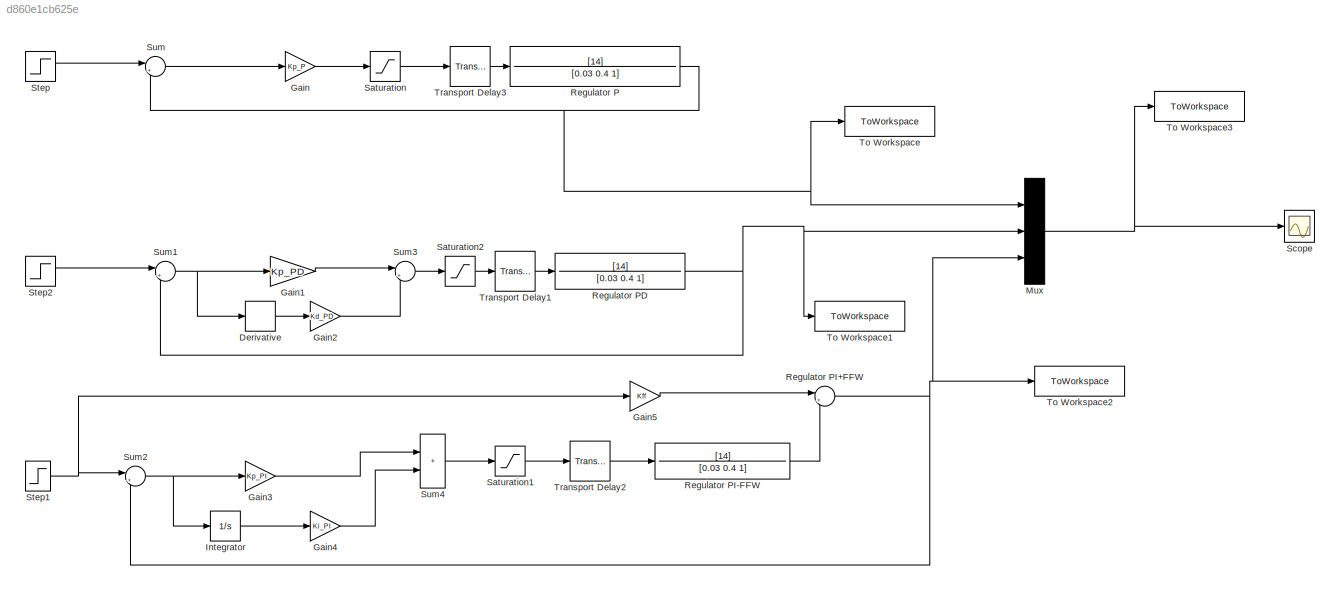
MODEL slx_d860e1cb625e
KIND model
CONFIG AbsTol = auto
CONFIG EnableMultiTasking = off
CONFIG FixedStep = auto
CONFIG MaxStep = 0.001
CONFIG MinStep = auto
CONFIG RelTol = 1e-4
CONFIG SampleTimeConstraint = Unconstrained
CONFIG SolverName = ode45
CONFIG StartTime = 0.0
CONFIG StopTime = 5
BLOCK [Derivative] Derivative
BLOCK [Gain] Gain
  Gain = Kp_P
BLOCK [Gain] Gain1
  Gain = Kp_PD
BLOCK [Gain] Gain2
  Gain = Kd_PD
BLOCK [Gain] Gain3
  Gain = Kp_PI
BLOCK [Gain] Gain4
  Gain = Ki_PI
BLOCK [Gain] Gain5
  Gain = Kff
BLOCK [Integrator] Integrator
BLOCK [Mux] Mux
  DisplayOption = bar
  Inputs = 3
BLOCK [TransferFcn] Regulator P
  Denominator = [0.03 0.4 1]
  Numerator = [14]
BLOCK [TransferFcn] Regulator PD
  Denominator = [0.03 0.4 1]
  Numerator = [14]
BLOCK [Sum] Regulator PI+FFW
  Inputs = |++
BLOCK [TransferFcn] Regulator PI-FFW
  Denominator = [0.03 0.4 1]
  Numerator = [14]
BLOCK [Saturate] Saturation
  LowerLimit = -100
  UpperLimit = 100
BLOCK [Saturate] Saturation1
  LowerLimit = -100
  UpperLimit = 100
BLOCK [Saturate] Saturation2
  LowerLimit = -100
  UpperLimit = 100
BLOCK [Scope] Scope
  ActiveDisplayYMaximum = 189.59726588161504
  ActiveDisplayYMinimum = -171.64675581754224
  ContainerLayout = {"WindowBounds":[-7,-8,1453,866]}
  Floating = off
  GraphicalSettings = {"AxesScalingProperties":{"AlignXAxis":"Center","AlignYAxis":"Center","AutoScaleXAxisLimits":false,"AxesScaling":"Manual","AxesScalingNumUpdates":10,"ExpandOnly":true,"ScaleAxesLimitsAtStop":false,"XAxisDataRange":100,"YAxisDataRange":80},"DisplayProperties":{"ColorOrder":["auto","auto","auto","auto","auto","auto","auto","auto","auto","auto","auto","auto","auto","auto","auto","auto","auto","auto",...<+2109ch>
  MultipleDisplayCache = [{"MaxYLimMag":189.59726588161504,"MaxYLimReal":189.59726588161504,"MinYLimMag":0,"MinYLimReal":-171.64675581754224,"PlotAsMagnitudePhase":false,"ShowGrid":true,"ShowLegend":true,"Title":"%<SignalLabel>","YLabel":""}]
  NumInputPorts = 1
  ScopeFrameLocation = container
  ShowLegend = on
  Visible = on
  WasSavedAsWebScope = on
  WindowPosition = [1.000000,49.000000,1440.000000,830.000000,]
BLOCK [Step] Step
  After = 10
  SampleTime = 0
  Time = 0
BLOCK [Step] Step1
  After = 10
  SampleTime = 0
  Time = 0
BLOCK [Step] Step2
  After = 10
  SampleTime = 0
  Time = 0
BLOCK [Sum] Sum
  Inputs = |+-
BLOCK [Sum] Sum1
  Inputs = |+-
BLOCK [Sum] Sum2
  Inputs = |+-
BLOCK [Sum] Sum3
  Inputs = |++
BLOCK [Sum] Sum4
  IconShape = rectangular
  Inputs = |++
BLOCK [ToWorkspace] To Workspace
  FixptAsFi = on
  MaxDataPoints = inf
  SampleTime = -1
  VariableName = Raspuns_P
BLOCK [ToWorkspace] To Workspace1
  FixptAsFi = on
  MaxDataPoints = inf
  SampleTime = -1
  VariableName = Raspuns_PD
BLOCK [ToWorkspace] To Workspace2
  FixptAsFi = on
  MaxDataPoints = inf
  SampleTime = -1
  VariableName = Raspuns_PI_FFW
BLOCK [ToWorkspace] To Workspace3
  FixptAsFi = on
  MaxDataPoints = inf
  SampleTime = -1
  VariableName = Raspuns
BLOCK [TransportDelay] Transport Delay1
  DelayTime = 0.05
BLOCK [TransportDelay] Transport Delay2
  DelayTime = 0.05
BLOCK [TransportDelay] Transport Delay3
  DelayTime = 0.05
LINE Derivative:1 -> Gain2:1
LINE Gain1:1 -> Sum3:1
LINE Gain2:1 -> Sum3:2
LINE Gain3:1 -> Sum4:1
LINE Gain4:1 -> Sum4:2
LINE Gain5:1 -> Regulator PI+FFW:1
LINE Gain:1 -> Saturation:1
LINE Integrator:1 -> Gain4:1
NET Mux:1 -> Scope:1, To Workspace3:1
NET Regulator P:1 -> Mux:1, Sum:2, To Workspace:1
NET Regulator PD:1 -> Mux:2, Sum1:2, To Workspace1:1
NET Regulator PI+FFW:1 -> Mux:3, Sum2:2, To Workspace2:1
LINE Regulator PI-FFW:1 -> Regulator PI+FFW:2
LINE Saturation1:1 -> Transport Delay2:1
LINE Saturation2:1 -> Transport Delay1:1
LINE Saturation:1 -> Transport Delay3:1
NET Step1:1 -> Gain5:1, Sum2:1
LINE Step2:1 -> Sum1:1
LINE Step:1 -> Sum:1
NET Sum1:1 -> Derivative:1, Gain1:1
NET Sum2:1 -> Gain3:1, Integrator:1
LINE Sum3:1 -> Saturation2:1
LINE Sum4:1 -> Saturation1:1
LINE Sum:1 -> Gain:1
LINE Transport Delay1:1 -> Regulator PD:1
LINE Transport Delay2:1 -> Regulator PI-FFW:1
LINE Transport Delay3:1 -> Regulator P:1
note: NET lines group one-source signal fan-out (src -> all destinations, sorted); 1:1 wires keep LINE
